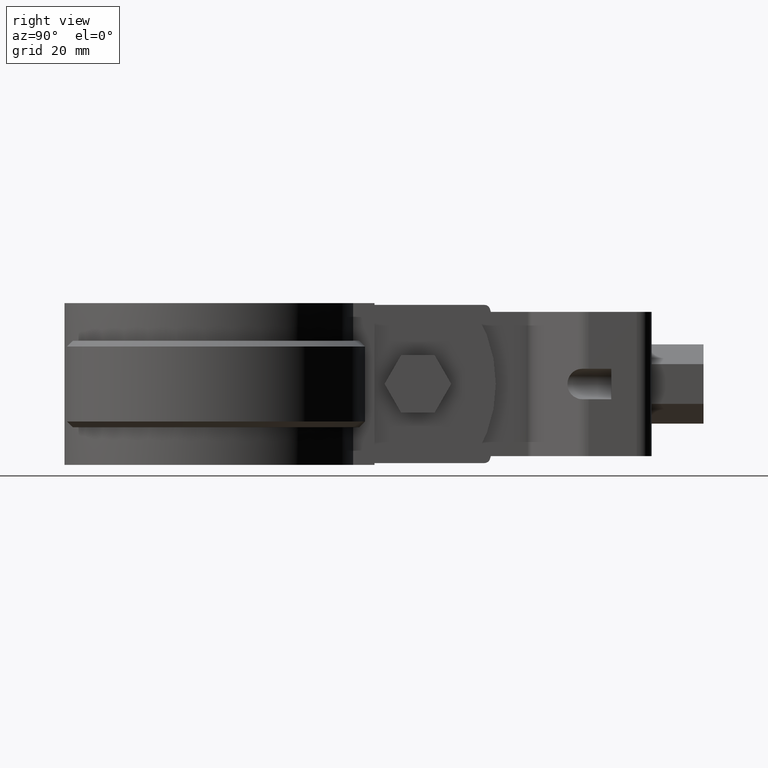
[diagram: clean part render]
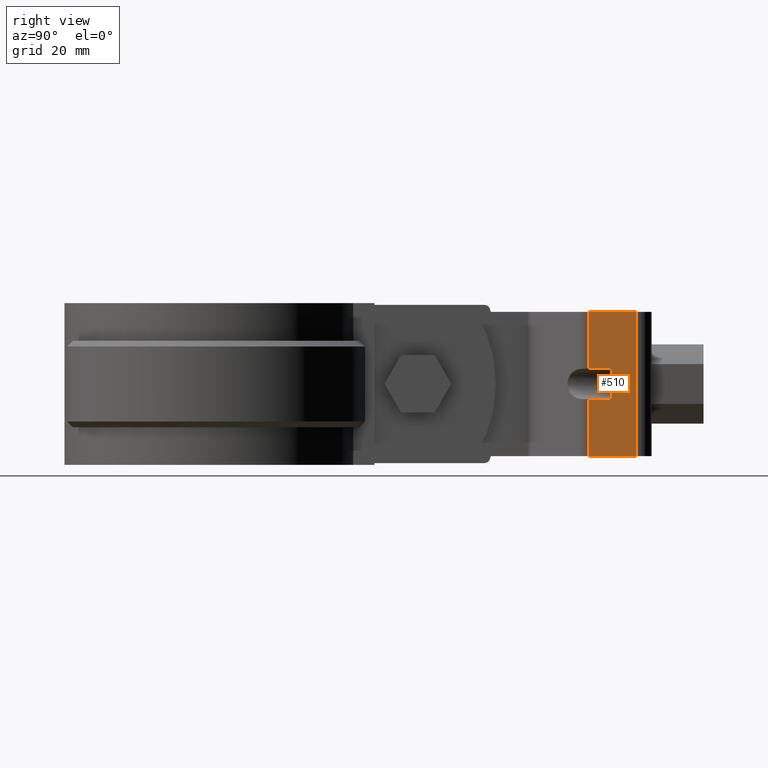
[diagram: same view with one face highlighted and labeled with its STEP entity id]
A machine part, right view. The second image highlights one B-rep face of the part: STEP entity #510.
In plain terms, the highlighted planar face has unit normal (1, 0, 0).
Its self-contained STEP definition (entity closure, byte-faithful):
#510 = ADVANCED_FACE( '', ( #1030 ), #1031, .T. );
#1030 = FACE_OUTER_BOUND( '', #2171, .T. );
#1031 = PLANE( '', #2172 );
#2171 = EDGE_LOOP( '', ( #5359, #5360, #5361, #5362, #5363, #5364, #5365, #5366 ) );
#2172 = AXIS2_PLACEMENT_3D( '', #5367, #5368, #5369 );
#5359 = ORIENTED_EDGE( '', *, *, #7475, .T. );
#5360 = ORIENTED_EDGE( '', *, *, #7476, .T. );
#5361 = ORIENTED_EDGE( '', *, *, #7477, .F. );
#5362 = ORIENTED_EDGE( '', *, *, #7436, .F. );
#5363 = ORIENTED_EDGE( '', *, *, #7473, .T. );
#5364 = ORIENTED_EDGE( '', *, *, #7461, .T. );
#5365 = ORIENTED_EDGE( '', *, *, #7471, .F. );
#5366 = ORIENTED_EDGE( '', *, *, #7457, .F. );
#5367 = CARTESIAN_POINT( '', ( 12.2500000000003, 65.4983168191172, -2.53408405370692E-011 ) );
#5368 = DIRECTION( '', ( 1.00000000000000, 7.98723925267201E-016, 5.79906149265224E-015 ) );
#5369 = DIRECTION( '', ( 7.98723925267932E-016, -1.00000000000000, -1.26121335597421E-013 ) );
#7436 = EDGE_CURVE( '', #8704, #8706, #8707, .T. );
#7457 = EDGE_CURVE( '', #8743, #8745, #8746, .T. );
#7461 = EDGE_CURVE( '', #8753, #8751, #8754, .T. );
#7471 = EDGE_CURVE( '', #8745, #8751, #8770, .T. );
#7473 = EDGE_CURVE( '', #8704, #8753, #8772, .T. );
#7475 = EDGE_CURVE( '', #8743, #8774, #8775, .T. );
#7476 = EDGE_CURVE( '', #8774, #8776, #8777, .T. );
#7477 = EDGE_CURVE( '', #8706, #8776, #8778, .T. );
#8704 = VERTEX_POINT( '', #12968 );
#8706 = VERTEX_POINT( '', #12970 );
#8707 = LINE( '', #12971, #12972 );
#8743 = VERTEX_POINT( '', #13018 );
#8745 = VERTEX_POINT( '', #13029 );
#8746 = LINE( '', #13030, #13031 );
#8751 = VERTEX_POINT( '', #13036 );
#8753 = VERTEX_POINT( '', #13038 );
#8754 = LINE( '', #13039, #13040 );
#8770 = LINE( '', #13077, #13078 );
#8772 = LINE( '', #13081, #13082 );
#8774 = VERTEX_POINT( '', #13085 );
#8775 = LINE( '', #13086, #13087 );
#8776 = VERTEX_POINT( '', #13088 );
#8777 = LINE( '', #13089, #13090 );
#8778 = LINE( '', #13091, #13092 );
#12968 = CARTESIAN_POINT( '', ( 12.2500000000003, 65.4983168191172, -2.53408405370692E-011 ) );
#12970 = CARTESIAN_POINT( '', ( 12.2500000000003, 73.8025110200030, -2.42861286636753E-011 ) );
#12971 = CARTESIAN_POINT( '', ( 12.2500000000003, 65.4983168191172, -2.53408405370692E-011 ) );
#12972 = VECTOR( '', #14863, 1000.00000000000 );
#13018 = CARTESIAN_POINT( '', ( 12.2500000000004, 65.4983168191190, -15.1500000000253 ) );
#13029 = CARTESIAN_POINT( '', ( 12.2500000000004, 69.4025110200047, -15.1500000000248 ) );
#13030 = CARTESIAN_POINT( '', ( 12.2500000000004, 59.4025110200047, -15.1500000000261 ) );
#13031 = VECTOR( '', #14901, 1000.00000000000 );
#13036 = CARTESIAN_POINT( '', ( 12.2500000000004, 69.4025110200040, -9.85000000002487 ) );
#13038 = CARTESIAN_POINT( '', ( 12.2500000000004, 65.4983168191183, -9.85000000002537 ) );
#13039 = CARTESIAN_POINT( '', ( 12.2500000000004, 59.4025110200040, -9.85000000002613 ) );
#13040 = VECTOR( '', #14911, 1000.00000000000 );
#13077 = CARTESIAN_POINT( '', ( 12.2500000000004, 69.4025110200051, -16.7500000000248 ) );
#13078 = VECTOR( '', #14922, 1000.00000000000 );
#13081 = CARTESIAN_POINT( '', ( 12.2500000000003, 65.4983168191172, -2.53408405370692E-011 ) );
#13082 = VECTOR( '', #14924, 1000.00000000000 );
#13085 = CARTESIAN_POINT( '', ( 12.2500000000005, 65.4983168191203, -25.0000000000253 ) );
#13086 = CARTESIAN_POINT( '', ( 12.2500000000003, 65.4983168191172, -2.53408405370692E-011 ) );
#13087 = VECTOR( '', #14926, 1000.00000000000 );
#13088 = CARTESIAN_POINT( '', ( 12.2500000000005, 73.8025110200062, -25.0000000000243 ) );
#13089 = CARTESIAN_POINT( '', ( 12.2500000000005, 65.4983168191203, -25.0000000000253 ) );
#13090 = VECTOR( '', #14927, 1000.00000000000 );
#13091 = CARTESIAN_POINT( '', ( 12.2500000000003, 73.8025110200030, -2.42861286636753E-011 ) );
#13092 = VECTOR( '', #14928, 1000.00000000000 );
#14863 = DIRECTION( '', ( -7.98723925267933E-016, 1.00000000000000, 1.26121335597421E-013 ) );
#14901 = DIRECTION( '', ( -7.98723925267933E-016, 1.00000000000000, 1.26121335597421E-013 ) );
#14911 = DIRECTION( '', ( -7.98723925267933E-016, 1.00000000000000, 1.26121335597421E-013 ) );
#14922 = DIRECTION( '', ( -5.79721095667138E-015, -1.26121335597421E-013, 1.00000000000000 ) );
#14924 = DIRECTION( '', ( 5.79906149265214E-015, 1.26121335597421E-013, -1.00000000000000 ) );
#14926 = DIRECTION( '', ( 5.79906149265214E-015, 1.26121335597421E-013, -1.00000000000000 ) );
#14927 = DIRECTION( '', ( -7.98723925267933E-016, 1.00000000000000, 1.26121335597421E-013 ) );
#14928 = DIRECTION( '', ( 5.79906149265214E-015, 1.26121335597421E-013, -1.00000000000000 ) );